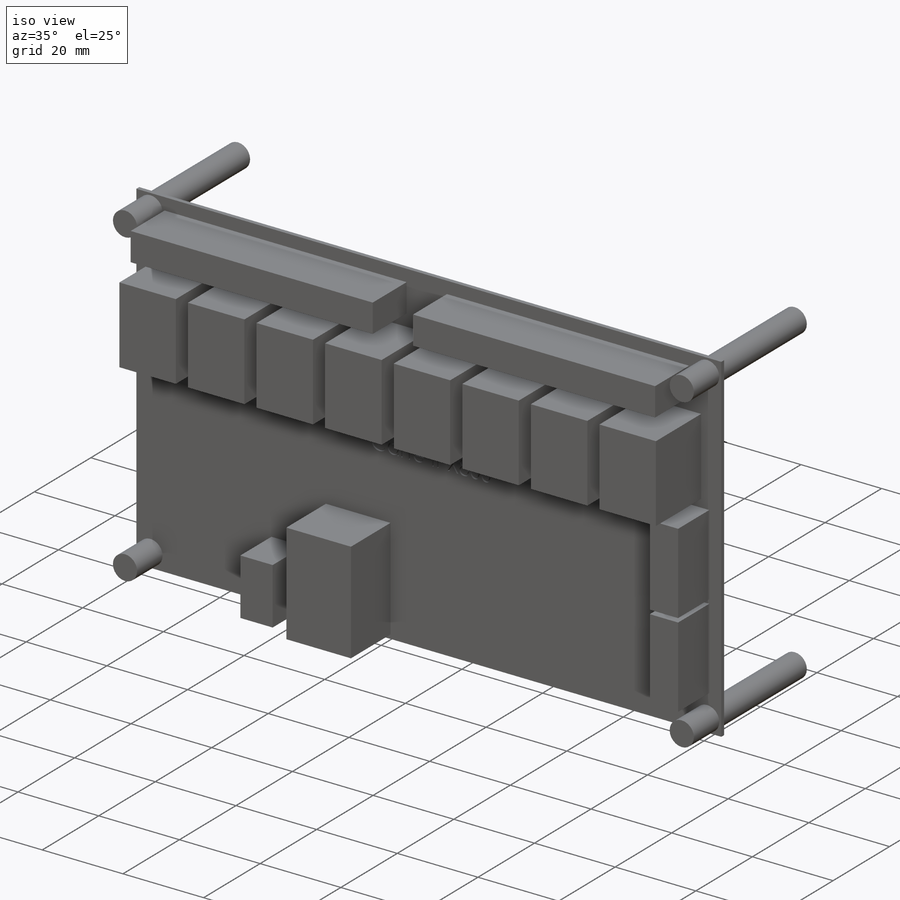
[diagram: iso view]
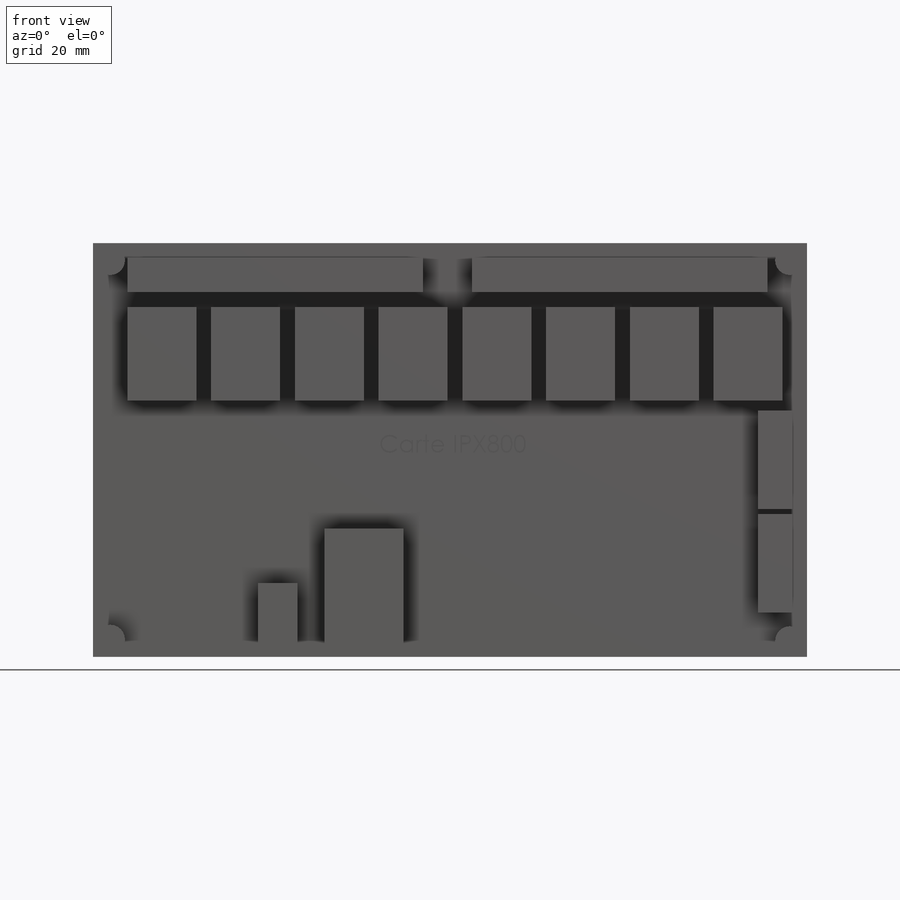
[diagram: front view]
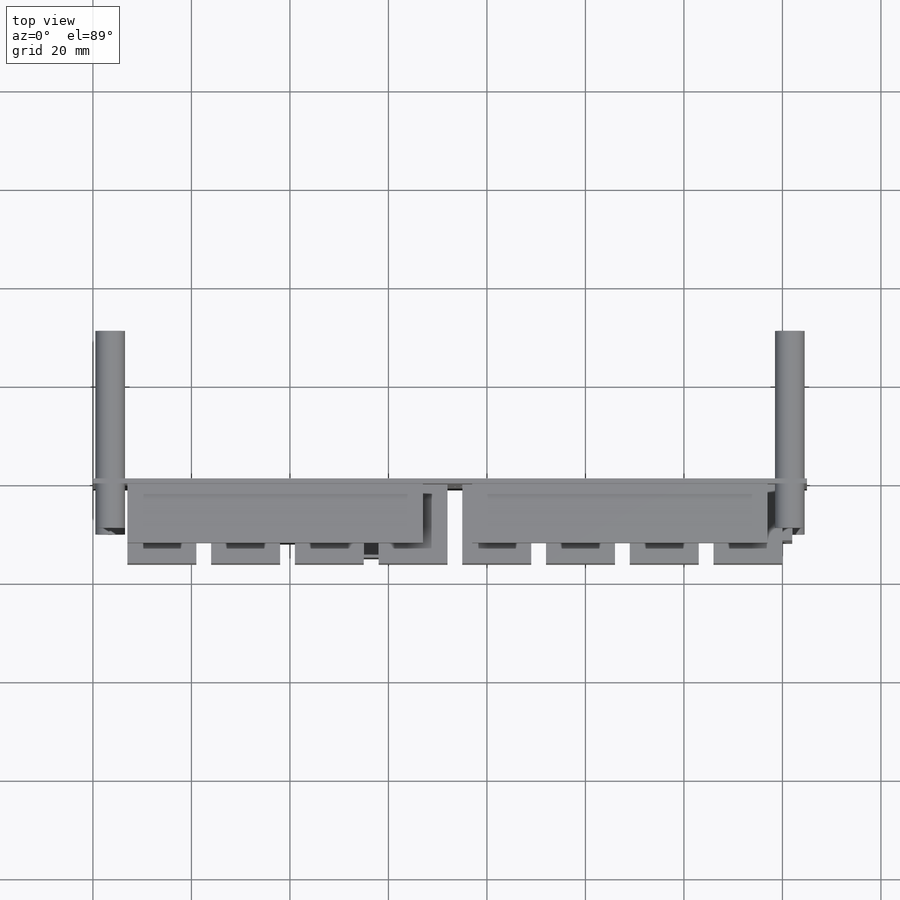
[diagram: top view]
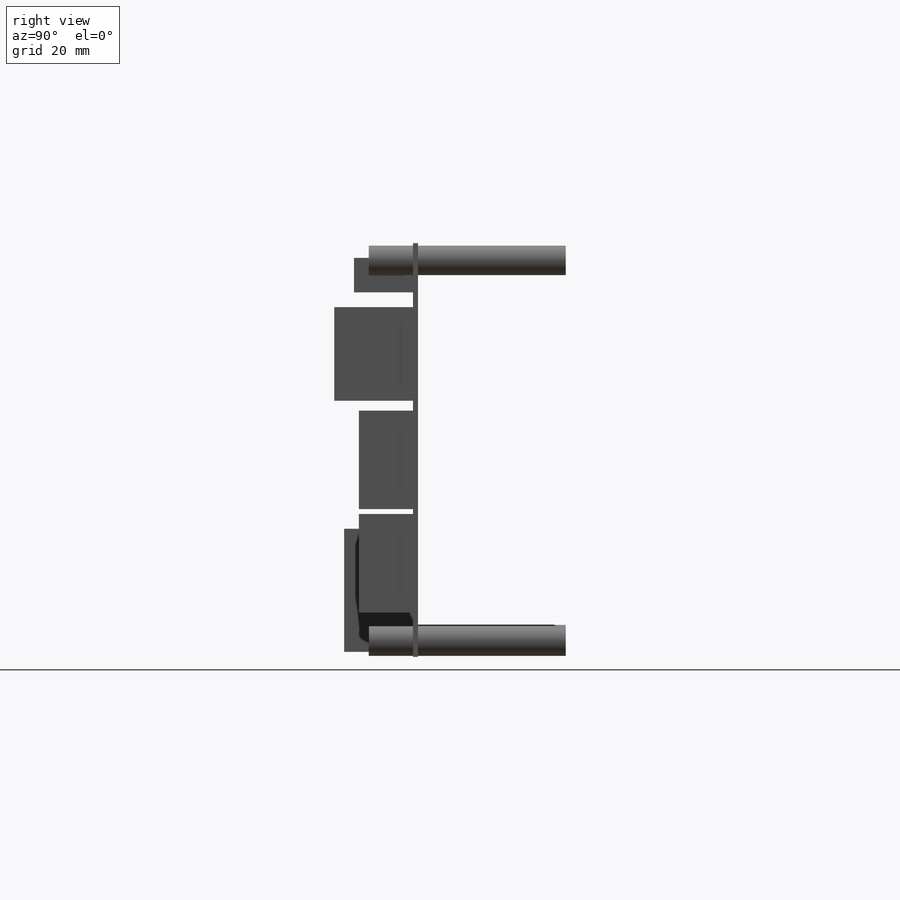
[diagram: right view]
SOLIDWORKS PART (.sldprt)
format: sldprt  version: not decoded by parser v0  size: 637,440 bytes
history: native  units: mm
features: sketch x11, extrude x8, plane x3, cut_extrude x3, pattern_linear x3, material x1 (+13 scaffold rows collapsed)
feature tree (42):
  scaffold x13  (default folders/planes/origin — collapsed)
  material  "Matériau <non spécifié>"
  plane  "Plan de face"
  plane  "Plan de dessus"
  plane  "Plan de droite"
  sketch  "Esquisse1"  dims[D1=145.0mm D2=84.0mm]
  extrude  "Extrusion1"  Depth=1mm
  sketch  "Esquisse2"  dims[D1=6.0mm D4=6.0mm D5=6.0mm D6=6.0mm D2=3.5mm D3=3.5mm D7=~3.192318mm D8=3.5mm D9=3.5mm D10=3.5mm D11=3.5mm D12=3.5mm]
  extrude  "Extrusion2"  Depth=30mm
  sketch  "Esquisse4"
  cut_extrude  "Extrusion3"  Depth=0.5mm
  sketch  "Esquisse5"  dims[D1=19.0mm D2=14.0mm D3=13.0mm D4=7.0mm]
  extrude  "Extrusion4"  Depth=16mm
  pattern_linear  "Répétition linéaire2"  Count1=8 Count2=1 Spacing1=17mm Spacing2=10mm
  sketch  "Esquisse6"  dims[D1=7.0mm D2=60.0mm D3=7.0mm D4=3.0mm]
  extrude  "Extrusion5"  Depth=12mm
  pattern_linear  "Répétition linéaire3"  Count1=2 Count2=1 Spacing1=70mm Spacing2=10mm
  sketch  "Esquisse7"  dims[D1=25.0mm D2=16.0mm D3=1.0mm D4=47.0mm]
  extrude  "Extrusion6"  Depth=14mm
  sketch  "Esquisse8"  dims[D1=8.0mm D2=14.0mm D3=1.0mm D4=5.5mm]
  extrude  "Extrusion7"  Depth=11mm
  sketch  "Esquisse9"  dims[D1=7.0mm D2=20.0mm D3=3.0mm D4=2.0mm]
  extrude  "Extrusion8"  Depth=11mm
  pattern_linear  "Répétition linéaire4"  Count1=2 Count2=1 Spacing1=21mm Spacing2=10mm
  sketch  "Esquisse10"  dims[c1.D1=6.0mm c1.D3=6.0mm c1.D2=4.0mm c2.D3=4.0mm]
  cut_extrude  "Extrusion9"  Depth=8mm
  sketch  "Esquisse11"  dims[D1=1.0mm]
  extrude  "Extrusion10"  Depth=8mm
  sketch  "Esquisse13"  dims[c1.D1=4.0mm c1.D2=1.0mm c1.D3=1.0mm c1.D4=12.0mm c1.D5=3.0mm c1.D6=8.0mm c1.D7=8.0mm c1.D8=8.0mm c1.D9=1.5mm c1.D10=2.0mm c1.D11=0.7mm c1.D12=2.0mm c2.D7=11.0mm c2.D2=3.7mm]
  cut_extrude  "Extrusion11"  Depth=15mm
decode coverage: 24 of 25 modeling features carry decoded parameters
note: ~ marks probable driven/reference dimensions
note: suppression state not decoded; provenance and decode notes live in map.json
